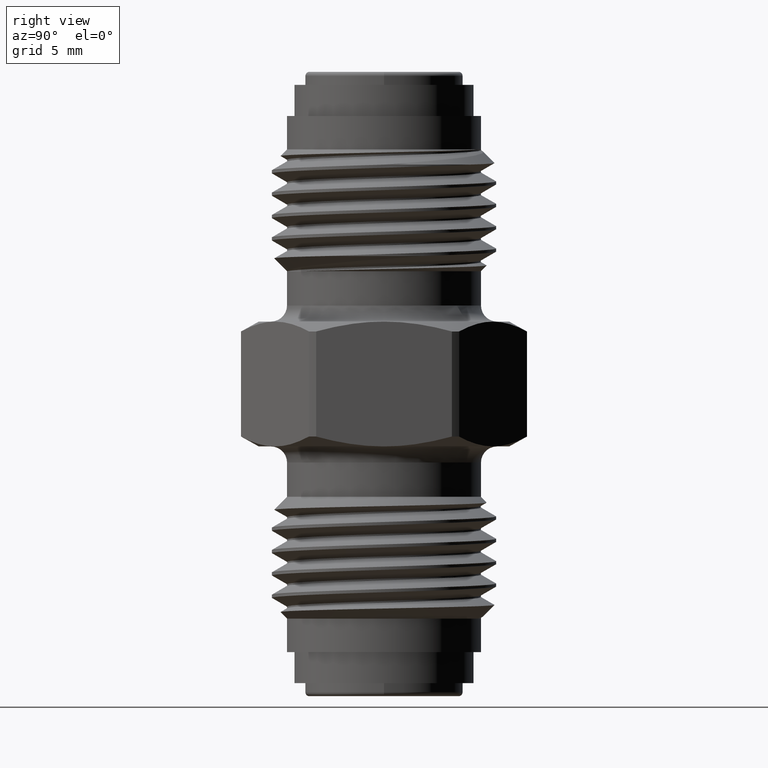
[diagram: clean part render]
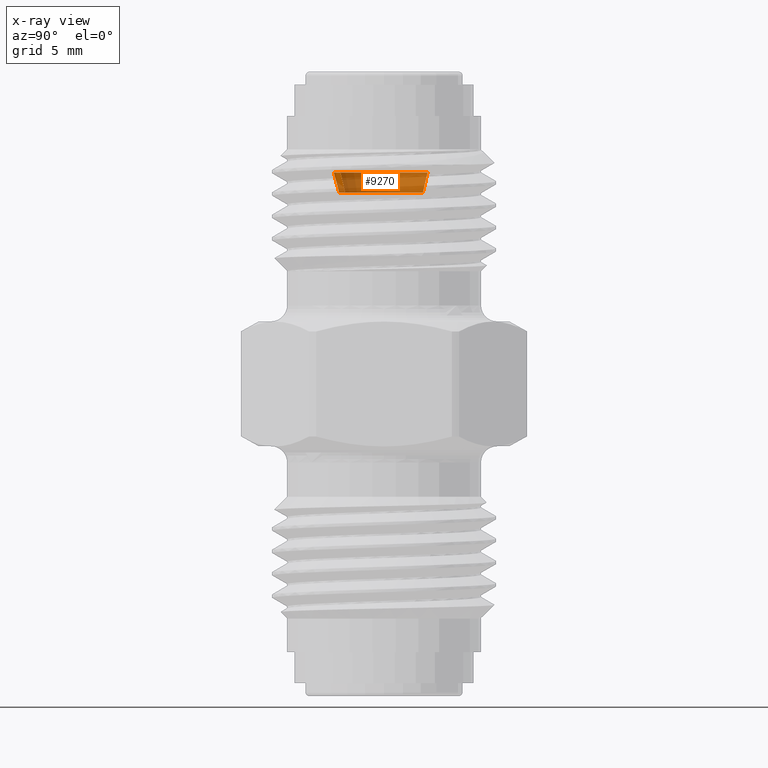
[diagram: x-ray — body ghosted, one internal face saturated and labeled with its STEP entity id]
A machine part, right view, then the same camera in x-ray: the body is ghosted and one INTERNAL B-rep face — a face not visible from any outside direction — is saturated and labeled: STEP entity #9270.
In plain terms, the highlighted conical surface has half-angle 15 deg.
Its self-contained STEP definition (entity closure, byte-faithful):
#47 = VERTEX_POINT ( 'NONE', #7214 ) ;
#847 = LINE ( 'NONE', #2323, #12734 ) ;
#989 = CARTESIAN_POINT ( 'NONE',  ( 0.000000000000000000, -0.05000000000000000971, -0.1247499999999999998 ) ) ;
#1004 = AXIS2_PLACEMENT_3D ( 'NONE', #6018, #1722, #11083 ) ;
#1684 = VERTEX_POINT ( 'NONE', #9285 ) ;
#1722 = DIRECTION ( 'NONE',  ( 0.000000000000000000, -1.000000000000000000, 0.000000000000000000 ) ) ;
#1871 = ORIENTED_EDGE ( 'NONE', *, *, #2020, .T. ) ;
#2020 = EDGE_CURVE ( 'NONE', #1684, #47, #6081, .T. ) ;
#2323 = CARTESIAN_POINT ( 'NONE',  ( 0.000000000000000000, -6.459958908043516856E-18, -0.1113525403784438456 ) ) ;
#2717 = CONICAL_SURFACE ( 'NONE', #1004, 0.1113525403784438456, 0.2617993877991496854 ) ;
#3469 = DIRECTION ( 'NONE',  ( 0.000000000000000000, -0.9659258262890682012, -0.2588190451025210170 ) ) ;
#3669 = DIRECTION ( 'NONE',  ( -0.000000000000000000, 1.000000000000000000, -0.000000000000000000 ) ) ;
#3705 = EDGE_CURVE ( 'NONE', #12697, #9895, #847, .T. ) ;
#5257 = CARTESIAN_POINT ( 'NONE',  ( 0.000000000000000000, -6.459958908043516856E-18, -0.1113525403784438456 ) ) ;
#5917 = DIRECTION ( 'NONE',  ( -0.000000000000000000, 1.000000000000000000, -0.000000000000000000 ) ) ;
#6018 = CARTESIAN_POINT ( 'NONE',  ( 0.000000000000000000, -6.459958908043516856E-18, 0.000000000000000000 ) ) ;
#6081 = LINE ( 'NONE', #7430, #9370 ) ;
#6110 = ORIENTED_EDGE ( 'NONE', *, *, #11437, .F. ) ;
#6833 = DIRECTION ( 'NONE',  ( 0.000000000000000000, 0.000000000000000000, 1.000000000000000000 ) ) ;
#6965 = EDGE_CURVE ( 'NONE', #47, #9895, #12231, .T. ) ;
#7214 = CARTESIAN_POINT ( 'NONE',  ( 1.527746881936323133E-17, -0.05000000000000000971, 0.1247499999999999998 ) ) ;
#7430 = CARTESIAN_POINT ( 'NONE',  ( 1.363675321513876655E-17, -6.459958908043516856E-18, 0.1113525403784438456 ) ) ;
#7495 = AXIS2_PLACEMENT_3D ( 'NONE', #11848, #3669, #6833 ) ;
#7826 = ORIENTED_EDGE ( 'NONE', *, *, #3705, .F. ) ;
#7979 = EDGE_LOOP ( 'NONE', ( #6110, #1871, #11734, #7826 ) ) ;
#9270 = ADVANCED_FACE ( 'NONE', ( #10641 ), #2717, .T. ) ;
#9285 = CARTESIAN_POINT ( 'NONE',  ( 1.445711101725099740E-17, -6.459958908043516856E-18, 0.1113525403784438456 ) ) ;
#9370 = VECTOR ( 'NONE', #10496, 39.37007874015748143 ) ;
#9593 = AXIS2_PLACEMENT_3D ( 'NONE', #12247, #5917, #13315 ) ;
#9895 = VERTEX_POINT ( 'NONE', #989 ) ;
#10496 = DIRECTION ( 'NONE',  ( 3.169619151431768023E-17, -0.9659258262890682012, 0.2588190451025210170 ) ) ;
#10641 = FACE_OUTER_BOUND ( 'NONE', #7979, .T. ) ;
#11083 = DIRECTION ( 'NONE',  ( 0.000000000000000000, 0.000000000000000000, -1.000000000000000000 ) ) ;
#11437 = EDGE_CURVE ( 'NONE', #1684, #12697, #13212, .T. ) ;
#11734 = ORIENTED_EDGE ( 'NONE', *, *, #6965, .T. ) ;
#11848 = CARTESIAN_POINT ( 'NONE',  ( 0.000000000000000000, -0.05000000000000000971, 0.000000000000000000 ) ) ;
#12231 = CIRCLE ( 'NONE', #7495, 0.1247499999999999998 ) ;
#12247 = CARTESIAN_POINT ( 'NONE',  ( 0.000000000000000000, -6.459958908043516856E-18, 0.000000000000000000 ) ) ;
#12697 = VERTEX_POINT ( 'NONE', #5257 ) ;
#12734 = VECTOR ( 'NONE', #3469, 39.37007874015748143 ) ;
#13212 = CIRCLE ( 'NONE', #9593, 0.1113525403784438456 ) ;
#13315 = DIRECTION ( 'NONE',  ( 0.000000000000000000, 0.000000000000000000, 1.000000000000000000 ) ) ;